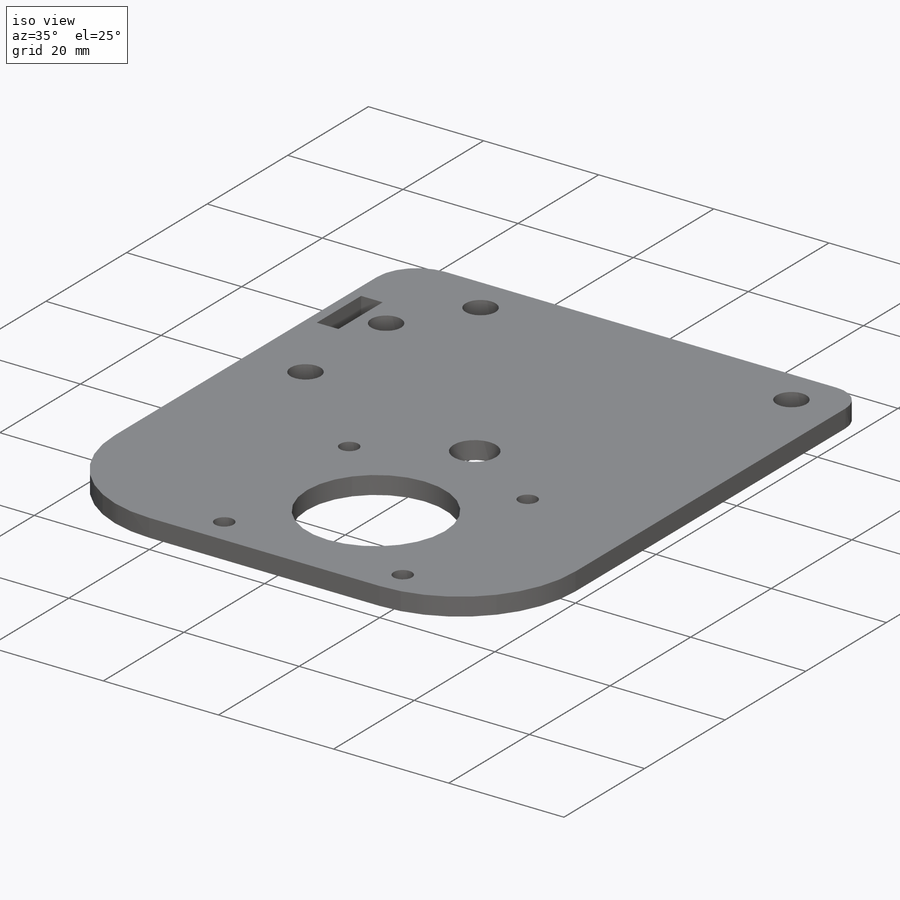
[diagram: iso view]
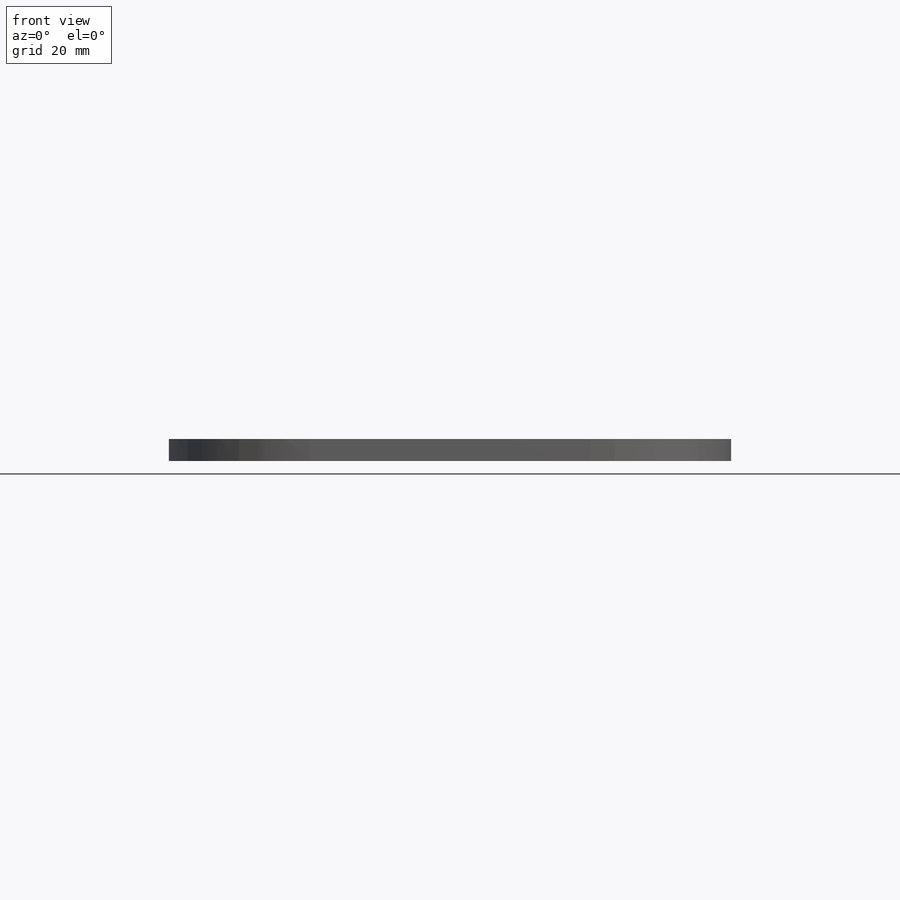
[diagram: front view]
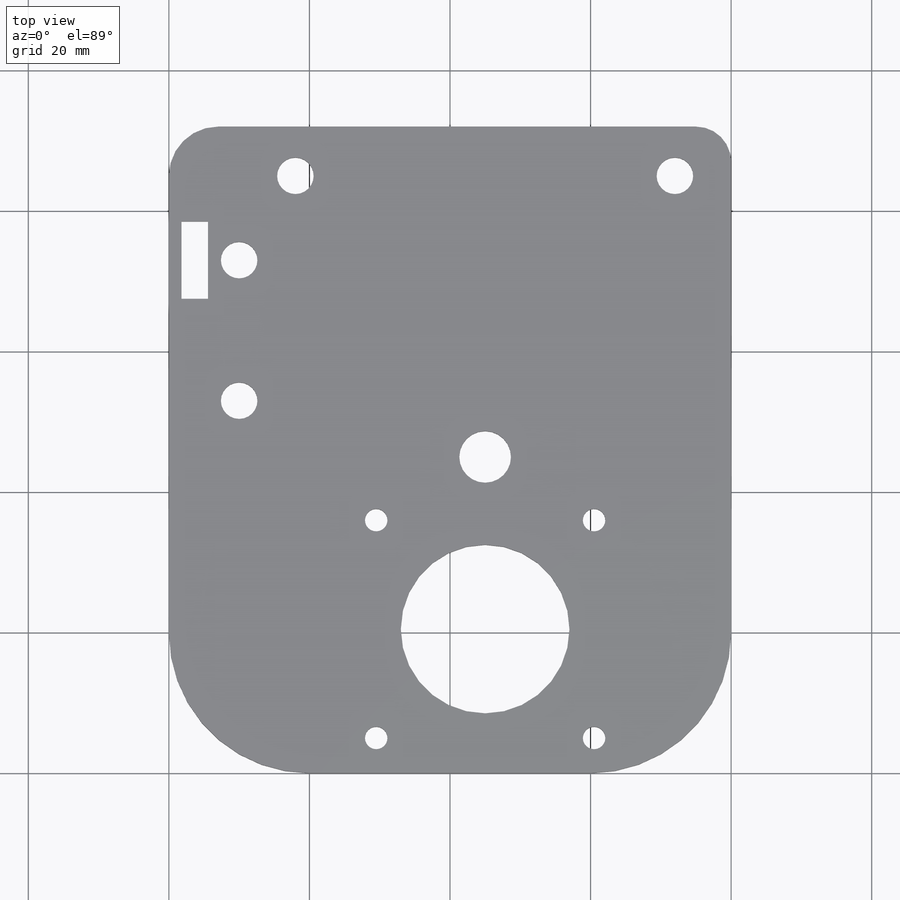
[diagram: top view]
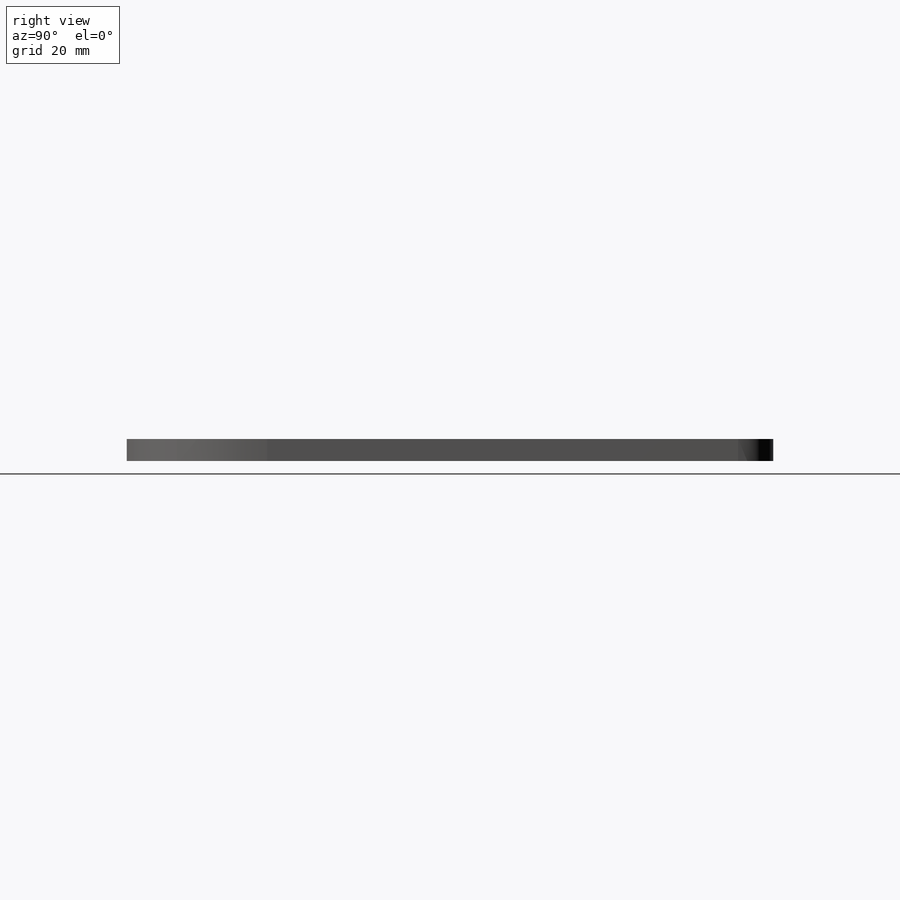
[diagram: right view]
SOLIDWORKS PART (.sldprt)
format: sldprt  version: not decoded by parser v0  size: 255,488 bytes
history: native  units: mm
features: fillet x4, material x1, sketch x1, extrude x1 + 1 further entry (+12 scaffold rows collapsed)
feature tree (20):
  scaffold x12  (default folders/planes/origin — collapsed)
  material  "Material <not specified>"
  "Annotations"  RD1=31mm RD2=31mm RD3=31mm RD4=31mm
  sketch  "Sketch2"  dims[c1.D6=3.2mm c1.D7=5.2mm c1.D11=24.0mm c1.D12=24.0mm c1.D13=3.2mm c1.D2=24.0mm c1.D3=3.2mm c2.D13=3.2mm c2.D14=3.2mm c2.D15=3.2mm c2.D16=3.2mm c2.D17=3.2mm c2.D18=3.2mm c2.D19=3.2mm c2.D4=7.35mm c2.D5=7.5mm c2.D21=7.5mm c2.D22=5.2mm c2.D8=5.2mm c2.D9=7.5mm c2.D3=3.2mm c3.D16=3.2mm c3.D19=5.2mm c3.D23=5.2mm c3.D25=5.2mm c3.D21=7.35mm c3.D1=80.0mm c3.D2=24.5mm c3.D3=7.0mm c3.D4=20.0mm c3.D5=20.0mm c3.D6=12.5mm c3.D8=8.0mm c3.D9=8.0mm c3.D10=45.0mm c3.D11=40.5mm c3.D13=31.0mm c4.D2=35.0mm c4.D3=25.0mm c4.D13=31.0mm c4.D14=31.0mm c4.D15=31.0mm c4.D16=19.5mm c4.D17=31.0mm c4.D18=19.5mm c4.D19=19.5mm c4.D20=92.0mm c4.D5=35.0mm c4.D21=9.0mm c4.D22=54.0mm c4.D8=8.0mm c4.D9=35.0mm c5.D5=35.0mm c5.D3=5.0mm c5.D9=19.5mm c5.D16=19.5mm c5.D11=15.5mm c6.D16=15.5mm c6.D18=10.0mm c6.D19=10.0mm c6.D23=53.0mm c6.D24=20.0mm c6.D25=10.0mm c6.D26=11.0mm c7.D26=90.0deg c8.D26=11.0mm c9.D26=90.0deg c10.D26=11.0mm c11.D26=90.0deg c12.D26=~3.76066mm c12.D21=40.0mm]
  extrude  "Boss-Extrude1"  Depth=3.125mm
  fillet  "Fillet1"  Radius=20mm
  fillet  "Fillet2"  Radius=20mm
  fillet  "Fillet4"  Radius=5mm
  fillet  "Fillet5"  Radius=7mm
decode coverage: 6 of 6 modeling features carry decoded parameters; 1 rows unclassified (native names shown)
note: ~ marks probable driven/reference dimensions
note: suppression state not decoded; provenance and decode notes live in map.json
